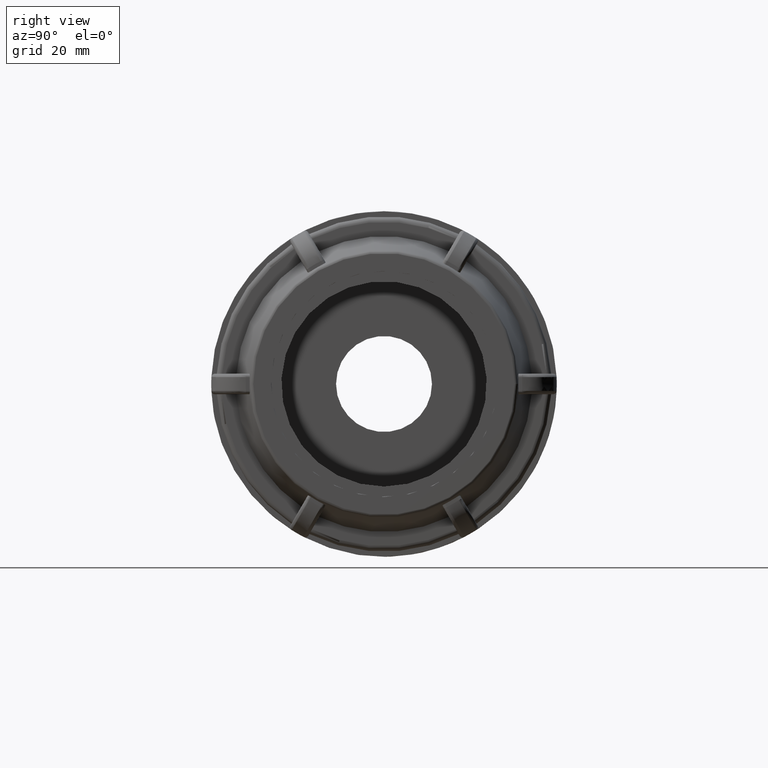
[diagram: clean part render]
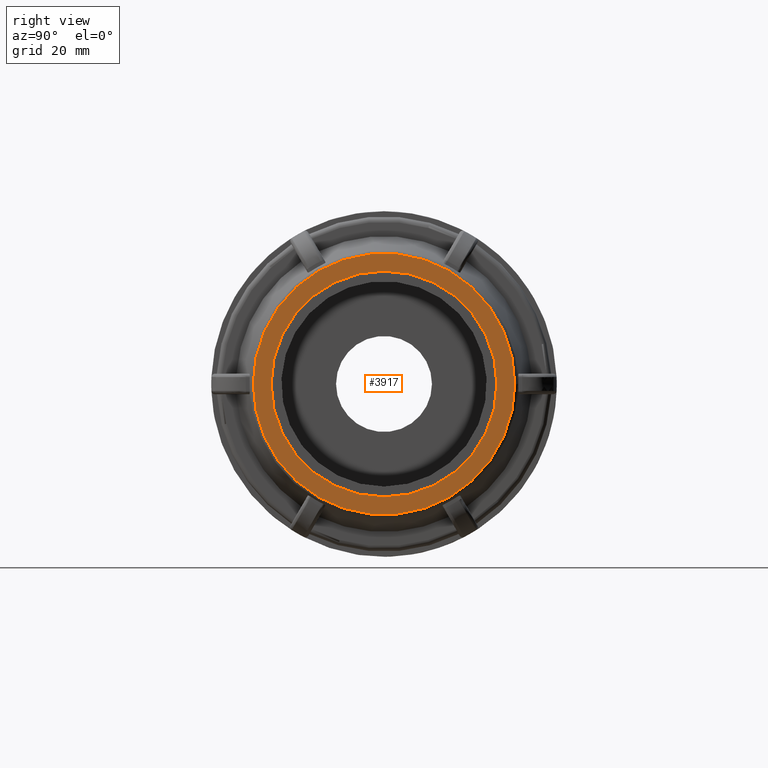
[diagram: same view with one face highlighted and labeled with its STEP entity id]
A machine part, right view. The second image highlights one B-rep face of the part: STEP entity #3917.
In plain terms, the highlighted planar face has unit normal (1, 0, 0).
Its self-contained STEP definition (entity closure, byte-faithful):
#211=FACE_BOUND('',#786,.T.);
#303=PLANE('',#4358);
#531=FACE_OUTER_BOUND('',#785,.T.);
#785=EDGE_LOOP('',(#3591));
#786=EDGE_LOOP('',(#3592));
#1479=CIRCLE('',#4357,40.1109003688227);
#1480=CIRCLE('',#4359,34.65);
#1857=VERTEX_POINT('',#8132);
#1858=VERTEX_POINT('',#8135);
#2439=EDGE_CURVE('',#1857,#1857,#1479,.T.);
#2440=EDGE_CURVE('',#1858,#1858,#1480,.T.);
#3591=ORIENTED_EDGE('',*,*,#2439,.F.);
#3592=ORIENTED_EDGE('',*,*,#2440,.F.);
#3917=ADVANCED_FACE('',(#531,#211),#303,.T.);
#4357=AXIS2_PLACEMENT_3D('',#8133,#5461,#5462);
#4358=AXIS2_PLACEMENT_3D('',#8134,#5463,#5464);
#4359=AXIS2_PLACEMENT_3D('',#8136,#5465,#5466);
#5461=DIRECTION('center_axis',(-1.,-3.06161699786838E-16,0.));
#5462=DIRECTION('ref_axis',(3.06161699786838E-16,-1.,1.83697019872103E-16));
#5463=DIRECTION('center_axis',(1.,3.06161699786838E-16,0.));
#5464=DIRECTION('ref_axis',(0.,0.,-1.));
#5465=DIRECTION('center_axis',(1.,3.06161699786838E-16,0.));
#5466=DIRECTION('ref_axis',(0.,0.,-1.));
#8132=CARTESIAN_POINT('',(83.5,40.1109003688228,-1.22804214368993E-14));
#8133=CARTESIAN_POINT('Origin',(83.5,2.5564501932201E-14,0.));
#8134=CARTESIAN_POINT('Origin',(83.5,34.65,0.));
#8135=CARTESIAN_POINT('',(83.5,34.65,0.));
#8136=CARTESIAN_POINT('Origin',(83.5,2.5564501932201E-14,0.));